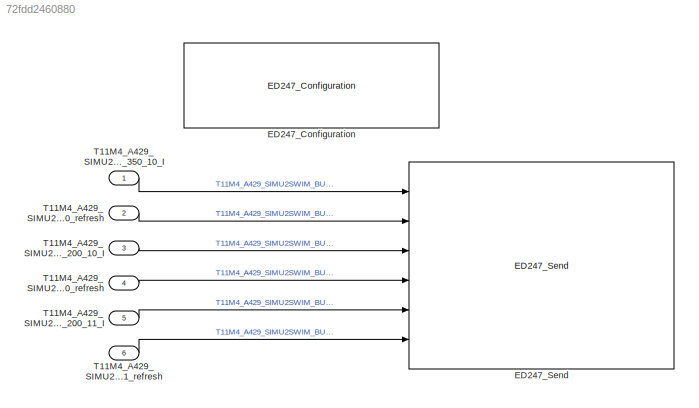
MODEL slx_72fdd2460880
KIND model
CONFIG AbsTol = auto
CONFIG EnableMultiTasking = off
CONFIG FixedStep = auto
CONFIG MaxStep = auto
CONFIG MinStep = auto
CONFIG PreLoadFcn = fprintf(1, '[PreLoadFcn] Load send_a429_sample_inputs.mat\n');\nload send_a429_sample_inputs
CONFIG RelTol = 1e-3
CONFIG SampleTimeConstraint = Unconstrained
CONFIG SolverName = FixedStepAuto
CONFIG StartTime = 0.0
CONFIG StopTime = 10.0
WORKSPACE source: mxarray member
WORKSPACE ED247Configuration: object (value not decoded)
BLOCK [Reference] ED247_Configuration  REF=lib_ed247/ED247_Configuration
  Ports = []
  SourceBlock = lib_ed247/ED247_Configuration
  SourceProductName = Airbus ED247
  SourceType = Configurable block example
BLOCK [Reference] ED247_Send  REF=lib_ed247/ED247_Send
  Ports = [6]
  SourceBlock = lib_ed247/ED247_Send
  SourceProductName = Airbus ED247
  SourceType = ED247 Send
BLOCK [Inport] T11M4_A429_SIMU2SWIM_BUS_1_200_10_I
  OutDataTypeStr = uint8
  Port = 3
  PortDimensions = 4
  SampleTime = 0.1
BLOCK [Inport] T11M4_A429_SIMU2SWIM_BUS_1_200_10_refresh
  OutDataTypeStr = boolean
  Port = 4
BLOCK [Inport] T11M4_A429_SIMU2SWIM_BUS_1_200_11_I
  OutDataTypeStr = uint8
  Port = 5
  PortDimensions = 4
  SampleTime = 0.1
BLOCK [Inport] T11M4_A429_SIMU2SWIM_BUS_1_200_11_refresh
  OutDataTypeStr = boolean
  Port = 6
BLOCK [Inport] T11M4_A429_SIMU2SWIM_BUS_1_350_10_I
  OutDataTypeStr = uint8
  PortDimensions = 4
  SampleTime = 0.1
BLOCK [Inport] T11M4_A429_SIMU2SWIM_BUS_1_350_10_refresh
  OutDataTypeStr = boolean
  Port = 2
LINE T11M4_A429_SIMU2SWIM_BUS_1_200_10_I:1 -> ED247_Send:3
LINE T11M4_A429_SIMU2SWIM_BUS_1_200_10_refresh:1 -> ED247_Send:4
LINE T11M4_A429_SIMU2SWIM_BUS_1_200_11_I:1 -> ED247_Send:5
LINE T11M4_A429_SIMU2SWIM_BUS_1_200_11_refresh:1 -> ED247_Send:6
LINE T11M4_A429_SIMU2SWIM_BUS_1_350_10_I:1 -> ED247_Send:1
LINE T11M4_A429_SIMU2SWIM_BUS_1_350_10_refresh:1 -> ED247_Send:2
